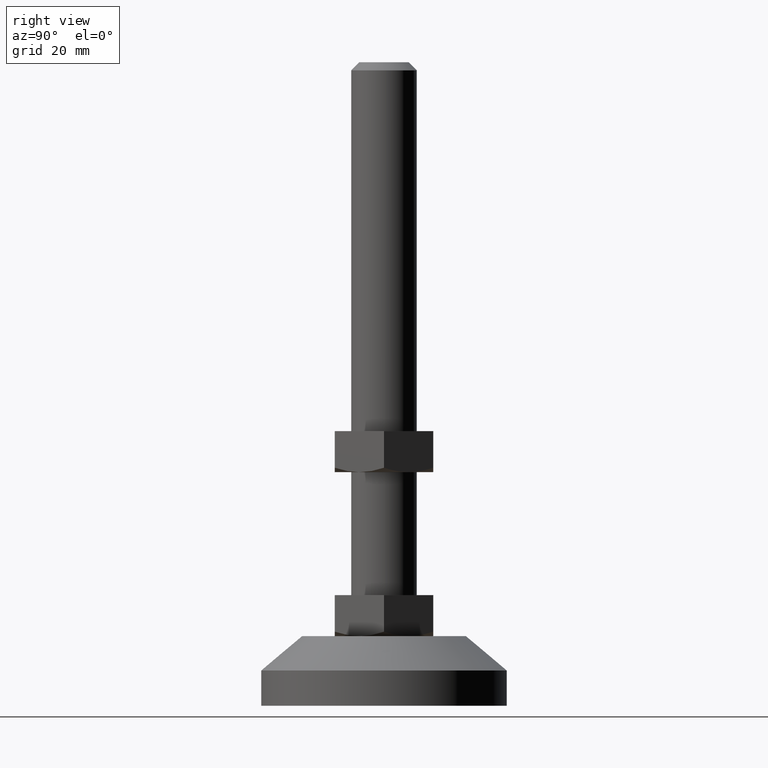
[diagram: clean part render]
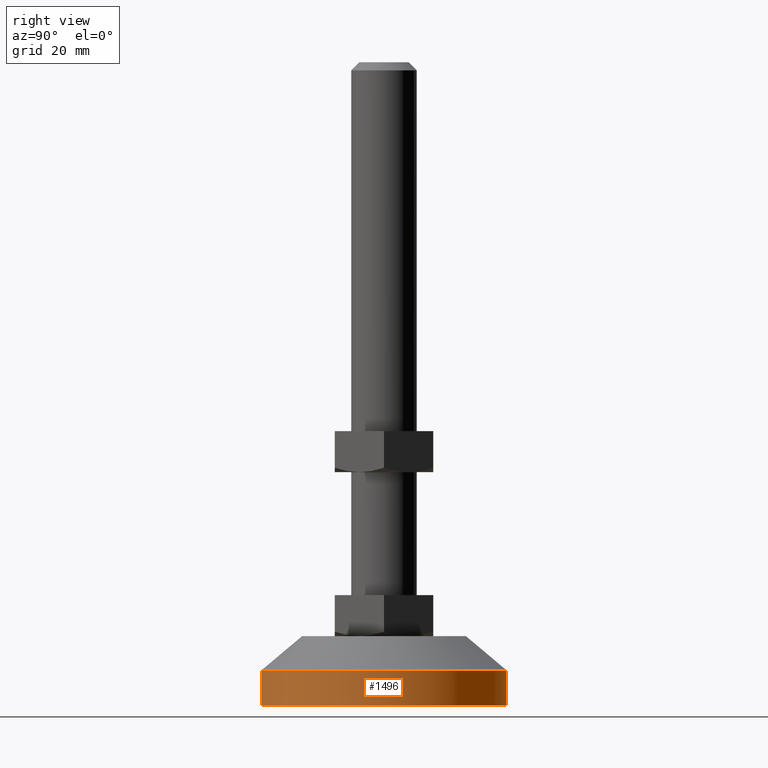
[diagram: same view with one face highlighted and labeled with its STEP entity id]
A machine part, right view. The second image highlights one B-rep face of the part: STEP entity #1496.
In plain terms, the highlighted face is a freeform B-spline surface patch.
Its self-contained STEP definition (entity closure, byte-faithful):
#1204=CARTESIAN_POINT('',(-1.831456145177757,29.944043896663011,8.609004048973443));
#1205=VERTEX_POINT('',#1204);
#1213=CARTESIAN_POINT('',(1.831456145177749,-29.944043896663011,8.609004048973443));
#1214=VERTEX_POINT('',#1213);
#1220=CARTESIAN_POINT('',(30.0,0.0,8.609004000000001));
#1221=VERTEX_POINT('',#1220);
#1222=CARTESIAN_POINT('',(30.0,0.0,8.609004000000001));
#1223=CARTESIAN_POINT('',(30.000024011925227,-28.221225893258318,8.609004024486724));
#1224=CARTESIAN_POINT('',(1.831456145177749,-29.944043896663015,8.609004048973443));
#1232=(BOUNDED_CURVE()B_SPLINE_CURVE(2,(#1222,#1223,#1224),.UNSPECIFIED.,.F.,.U.)B_SPLINE_CURVE_WITH_KNOTS((3,3),(0.500000000000000,0.739333239205728),.UNSPECIFIED.)CURVE()GEOMETRIC_REPRESENTATION_ITEM()RATIONAL_B_SPLINE_CURVE((1.0,0.719603668799938,0.976072635259979))REPRESENTATION_ITEM(''));
#1233=EDGE_CURVE('',#1221,#1214,#1232,.T.);
#1235=CARTESIAN_POINT('',(-1.831456145177757,29.944043896663011,8.609004048973443));
#1236=CARTESIAN_POINT('',(-0.916606132952510,29.999997047330773,8.609004048269682));
#1237=CARTESIAN_POINT('',(-0.000046600125292,29.999997093093299,8.609004047521566));
#1238=CARTESIAN_POINT('',(29.999977411799932,29.999998590952497,8.609004023034848));
#1239=CARTESIAN_POINT('',(30.0,0.0,8.609004000000001));
#1247=(BOUNDED_CURVE()B_SPLINE_CURVE(2,(#1235,#1236,#1237,#1238,#1239),.UNSPECIFIED.,.F.,.U.)B_SPLINE_CURVE_WITH_KNOTS((3,2,3),(0.239333239205728,0.250000000000000,0.500000000000000),.UNSPECIFIED.)CURVE()GEOMETRIC_REPRESENTATION_ITEM()RATIONAL_B_SPLINE_CURVE((0.976072635259979,0.987503112386610,1.0,0.707106781186547,1.0))REPRESENTATION_ITEM(''));
#1248=EDGE_CURVE('',#1205,#1221,#1247,.T.);
#1430=CARTESIAN_POINT('',(-1.831456186045710,29.944043952655999,8.824229100000002));
#1431=CARTESIAN_POINT('',(28.112587766610297,31.775500138701705,8.824229100000002));
#1432=CARTESIAN_POINT('',(29.944043952655999,1.831456186045710,8.824229100000002));
#1433=CARTESIAN_POINT('',(31.775500138701705,-28.112587766610297,8.824229100000002));
#1434=CARTESIAN_POINT('',(1.831456186045710,-29.944043952655999,8.824229100000002));
#1435=CARTESIAN_POINT('',(-1.831456186045710,29.944043952655999,-0.220605727500001));
#1436=CARTESIAN_POINT('',(28.112587766610297,31.775500138701705,-0.220605727500001));
#1437=CARTESIAN_POINT('',(29.944043952655999,1.831456186045710,-0.220605727500001));
#1438=CARTESIAN_POINT('',(31.775500138701705,-28.112587766610297,-0.220605727500001));
#1439=CARTESIAN_POINT('',(1.831456186045710,-29.944043952655999,-0.220605727500001));
#1447=(BOUNDED_SURFACE()B_SPLINE_SURFACE(2,1,((#1430,#1435),(#1431,#1436),(#1432,#1437),(#1433,#1438),(#1434,#1439)),.UNSPECIFIED.,.F.,.F.,.U.)B_SPLINE_SURFACE_WITH_KNOTS((3,2,3),(2,2),(0.0,49.705627484771391,99.411254969542782),(0.0,9.044834827500003),.UNSPECIFIED.)GEOMETRIC_REPRESENTATION_ITEM()RATIONAL_B_SPLINE_SURFACE(((1.0,1.0),(0.707106781186548,0.707106781186548),(1.0,1.0),(0.707106781186548,0.707106781186548),(1.0,1.0)))REPRESENTATION_ITEM('')SURFACE());
#1448=ORIENTED_EDGE('',*,*,#1248,.T.);
#1449=ORIENTED_EDGE('',*,*,#1233,.T.);
#1450=CARTESIAN_POINT('',(1.831408700482274,-29.944046856921901,-6.938894E-016));
#1451=VERTEX_POINT('',#1450);
#1452=CARTESIAN_POINT('',(1.831456145177749,-29.944043896663011,8.609004048973443));
#1453=CARTESIAN_POINT('',(1.831408700482274,-29.944046856921901,-6.938894E-016));
#1454=QUASI_UNIFORM_CURVE('',1,(#1452,#1453),.UNSPECIFIED.,.F.,.U.);
#1455=EDGE_CURVE('',#1214,#1451,#1454,.T.);
#1456=ORIENTED_EDGE('',*,*,#1455,.T.);
#1457=CARTESIAN_POINT('',(30.0,0.0,0.0));
#1458=VERTEX_POINT('',#1457);
#1459=CARTESIAN_POINT('',(30.0,0.0,0.0));
#1460=CARTESIAN_POINT('',(29.999999999998860,-28.221226844243059,-3.469447E-016));
#1461=CARTESIAN_POINT('',(1.831408700482273,-29.944046856921901,-6.938894E-016));
#1469=(BOUNDED_CURVE()B_SPLINE_CURVE(2,(#1459,#1460,#1461),.UNSPECIFIED.,.F.,.U.)B_SPLINE_CURVE_WITH_KNOTS((3,3),(0.500000000000000,0.739333235868444),.UNSPECIFIED.)CURVE()GEOMETRIC_REPRESENTATION_ITEM()RATIONAL_B_SPLINE_CURVE((1.0,0.719603672709809,0.976072628107527))REPRESENTATION_ITEM(''));
#1470=EDGE_CURVE('',#1458,#1451,#1469,.T.);
#1471=ORIENTED_EDGE('',*,*,#1470,.F.);
#1472=CARTESIAN_POINT('',(-1.831408700482275,29.944046856921901,3.191891E-016));
#1473=VERTEX_POINT('',#1472);
#1474=CARTESIAN_POINT('',(-1.831408700482276,29.944046856921897,3.191891E-016));
#1475=CARTESIAN_POINT('',(-0.916559089604114,29.999999999962888,3.146023E-016));
#1476=CARTESIAN_POINT('',(2.236709E-012,29.999999999963460,3.097264E-016));
#1477=CARTESIAN_POINT('',(30.000000000001084,29.999999999982290,1.501318E-016));
#1478=CARTESIAN_POINT('',(30.0,0.0,0.0));
#1486=(BOUNDED_CURVE()B_SPLINE_CURVE(2,(#1474,#1475,#1476,#1477,#1478),.UNSPECIFIED.,.F.,.U.)B_SPLINE_CURVE_WITH_KNOTS((3,2,3),(0.239333235868444,0.250000000000000,0.500000000000000),.UNSPECIFIED.)CURVE()GEOMETRIC_REPRESENTATION_ITEM()RATIONAL_B_SPLINE_CURVE((0.976072628107527,0.987503108476738,1.0,0.707106781186547,1.0))REPRESENTATION_ITEM(''));
#1487=EDGE_CURVE('',#1473,#1458,#1486,.T.);
#1488=ORIENTED_EDGE('',*,*,#1487,.F.);
#1489=CARTESIAN_POINT('',(-1.831456145177757,29.944043896663011,8.609004048973443));
#1490=CARTESIAN_POINT('',(-1.831408700482275,29.944046856921901,3.191891E-016));
#1491=QUASI_UNIFORM_CURVE('',1,(#1489,#1490),.UNSPECIFIED.,.F.,.U.);
#1492=EDGE_CURVE('',#1205,#1473,#1491,.T.);
#1493=ORIENTED_EDGE('',*,*,#1492,.F.);
#1494=EDGE_LOOP('',(#1448,#1449,#1456,#1471,#1488,#1493));
#1495=FACE_OUTER_BOUND('',#1494,.T.);
#1496=ADVANCED_FACE('',(#1495),#1447,.T.);